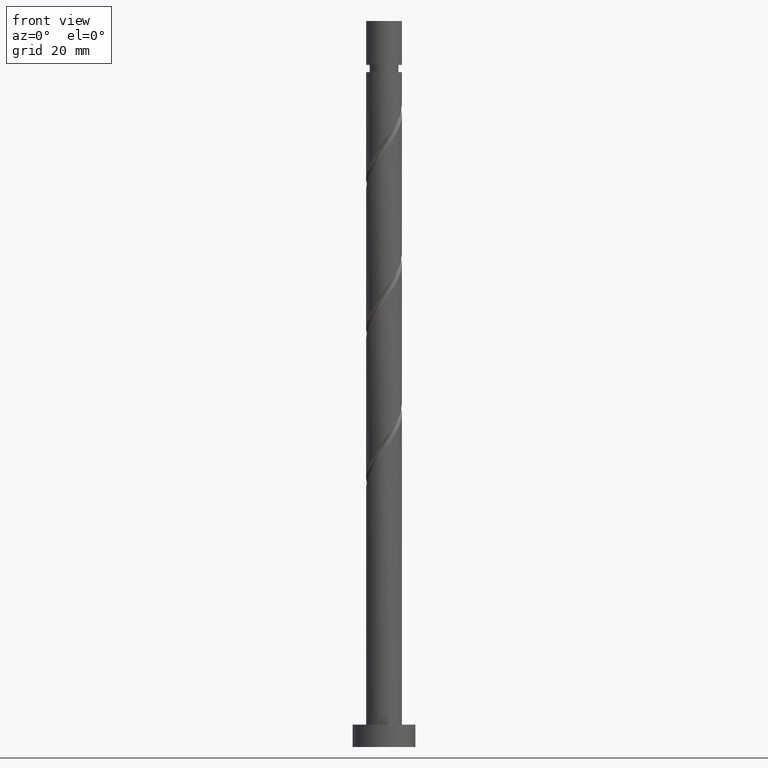
[diagram: clean part render]
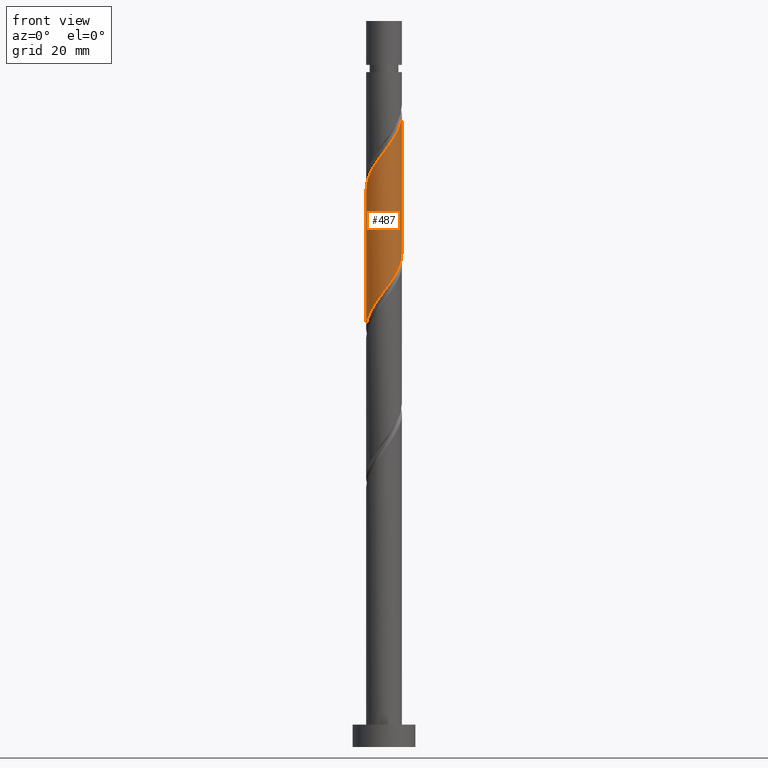
[diagram: same view with one face highlighted and labeled with its STEP entity id]
A machine part, front view. The second image highlights one B-rep face of the part: STEP entity #487.
In plain terms, the highlighted cylindrical surface (edge-blend (fillet) strip) has radius 4 mm, axis along (-0, -0, -1).
Its self-contained STEP definition (entity closure, byte-faithful):
#62 = CARTESIAN_POINT ( 'NONE',  ( -4.000000000000000888, 4.142198290882799695E-15, 93.32947835202993758 ) ) ;
#74 = CARTESIAN_POINT ( 'NONE',  ( 2.648031390325375600, -3.043886962058125700, 105.4603561412643131 ) ) ;
#76 = CARTESIAN_POINT ( 'NONE',  ( -1.312067740227890189, -3.815205935069465149, 99.90480058570875599 ) ) ;
#117 = EDGE_CURVE ( 'NONE', #1320, #896, #175, .T. ) ;
#140 = CARTESIAN_POINT ( 'NONE',  ( 4.000000000000000000, 5.981513777448084425E-15, 109.9961450186966232 ) ) ;
#146 = CARTESIAN_POINT ( 'NONE',  ( -3.920000000000005702, -0.7959899496852967937, 125.5992450301532131 ) ) ;
#175 = LINE ( 'NONE', #606, #803 ) ;
#191 = CARTESIAN_POINT ( 'NONE',  ( 3.580411880364394062, -1.783437906669448125, 107.5436894745976417 ) ) ;
#193 = CARTESIAN_POINT ( 'NONE',  ( -4.000000000000000888, -0.1229678066306910678, 93.49264204005811507 ) ) ;
#204 = CARTESIAN_POINT ( 'NONE',  ( 1.769985991819531312, -3.625529984802032590, 104.0714672523754132 ) ) ;
#247 = CARTESIAN_POINT ( 'NONE',  ( -1.270652482415439710, -3.792814557677651521, 131.1548005857087844 ) ) ;
#326 = CARTESIAN_POINT ( 'NONE',  ( 3.919999999999999929, -0.7959899496852973488, 108.9325783634865417 ) ) ;
#349 = CARTESIAN_POINT ( 'NONE',  ( -4.000000000000000888, 4.142198290882799695E-15, 93.32947835202993758 ) ) ;
#371 = CARTESIAN_POINT ( 'NONE',  ( 4.000000000000006217, -0.1229678066306914425, 141.0391813535816823 ) ) ;
#409 = CARTESIAN_POINT ( 'NONE',  ( 2.254808073111003619, -3.345617825659332745, 136.0159116968198987 ) ) ;
#419 = CARTESIAN_POINT ( 'NONE',  ( 1.783437906669445905, -3.580411880364401611, 135.3214672523754132 ) ) ;
#433 = EDGE_CURVE ( 'NONE', #896, #450, #772, .T. ) ;
#450 = VERTEX_POINT ( 'NONE', #349 ) ;
#457 = VECTOR ( 'NONE', #988, 1000.000000000000000 ) ;
#460 = ORIENTED_EDGE ( 'NONE', *, *, #1239, .F. ) ;
#476 = CARTESIAN_POINT ( 'NONE',  ( -0.7959899496852971268, -3.919999999999999929, 100.5992450301531846 ) ) ;
#478 = CARTESIAN_POINT ( 'NONE',  ( -2.649347517584564660, -2.996824607992349510, 97.82146725237542739 ) ) ;
#487 = ADVANCED_FACE ( 'NONE', ( #889 ), #1423, .T. ) ;
#510 = CARTESIAN_POINT ( 'NONE',  ( -4.000000000000006217, -9.121808510608274159E-16, 124.5356783749431457 ) ) ;
#518 = CARTESIAN_POINT ( 'NONE',  ( -2.209008691072457786, -3.334708473430082698, 129.7659116968198703 ) ) ;
#555 = CARTESIAN_POINT ( 'NONE',  ( 2.649347517584565104, -2.996824607992356615, 136.7103561412642989 ) ) ;
#604 = CARTESIAN_POINT ( 'NONE',  ( -3.625529984802032590, -1.769985991819531312, 95.73813391904211301 ) ) ;
#606 = CARTESIAN_POINT ( 'NONE',  ( 4.000000000000000000, 4.898587196589412829E-16, 162.0000000000000000 ) ) ;
#612 = CARTESIAN_POINT ( 'NONE',  ( 0.7713189730113375608, -3.960099130553265123, 102.6825783634865275 ) ) ;
#647 = VERTEX_POINT ( 'NONE', #1067 ) ;
#652 = CARTESIAN_POINT ( 'NONE',  ( -3.580411880364400723, -1.783437906669446793, 126.9881339190420704 ) ) ;
#736 = CARTESIAN_POINT ( 'NONE',  ( 4.000000000000000000, 5.981513777448084425E-15, 109.9961450186966232 ) ) ;
#738 = CARTESIAN_POINT ( 'NONE',  ( -3.792814557677647969, -1.270652482415435047, 95.04368947459767014 ) ) ;
#747 = CARTESIAN_POINT ( 'NONE',  ( 1.270652482415434825, -3.792814557677647969, 103.3770228079309703 ) ) ;
#750 = CARTESIAN_POINT ( 'NONE',  ( -3.043886962058125700, -2.648031390325376044, 97.12702280793099874 ) ) ;
#772 =( BOUNDED_CURVE ( )  B_SPLINE_CURVE ( 2, ( #736, #1674, #326, #1007, #191, #1272, #1540, #74, #877, #204, #747, #612, #1150, #1685, #476, #76, #1152, #1687, #478, #750, #1019, #604, #738, #1676, #1551, #193, #62 ),
 .UNSPECIFIED., .F., .F. ) 
 B_SPLINE_CURVE_WITH_KNOTS ( ( 3, 2, 2, 2, 2, 2, 2, 2, 2, 2, 2, 2, 2, 3 ),
 ( 0.5545317669814462391, 0.5625000000000000000, 0.5729166666666666297, 0.5833333333333333703, 0.5937500000000000000, 0.6041666666666666297, 0.6145833333333333703, 0.6250000000000000000, 0.6354166666666666297, 0.6458333333333333703, 0.6562500000000000000, 0.6666666666666666297, 0.6770833333333333703, 0.6795317669814463502 ),
 .UNSPECIFIED. ) 
 CURVE ( )  GEOMETRIC_REPRESENTATION_ITEM ( )  RATIONAL_B_SPLINE_CURVE ( ( 0.9062941362546368396, 0.9031415850403409218, 0.9090909090909164991, 0.9013135103398348669, 0.9090909090909164991, 0.9013135103398348669, 0.9090909090909164991, 0.9013135103398348669, 0.9090909090909164991, 0.9013135103398348669, 0.9090909090909164991, 0.9013135103398348669, 0.9090909090909164991, 0.9013135103398348669, 0.9090909090909164991, 0.9013135103398348669, 0.9090909090909164991, 0.9013135103398348669, 0.9090909090909164991, 0.9013135103398348669, 0.9090909090909164991, 0.9013135103398348669, 0.9090909090909164991, 0.9013135103398348669, 0.9090909090909164991, 0.9072628343904102222, 0.9062941362546367285 ) ) 
 REPRESENTATION_ITEM ( '' )  );
#778 = AXIS2_PLACEMENT_3D ( 'NONE', #1401, #1141, #1274 ) ;
#782 = CARTESIAN_POINT ( 'NONE',  ( 3.625529984802036143, -1.769985991819537530, 138.7936894745976701 ) ) ;
#791 = CARTESIAN_POINT ( 'NONE',  ( -0.2457034069343194127, -3.992446597741905467, 132.5436894745976701 ) ) ;
#803 = VECTOR ( 'NONE', #1154, 1000.000000000000000 ) ;
#822 = CARTESIAN_POINT ( 'NONE',  ( -4.000000000000005329, -0.4020151261036851720, 125.0691047441324315 ) ) ;
#841 = LINE ( 'NONE', #1657, #457 ) ;
#877 = CARTESIAN_POINT ( 'NONE',  ( 2.209008691072451569, -3.334708473430080033, 104.7659116968198418 ) ) ;
#884 = ORIENTED_EDGE ( 'NONE', *, *, #433, .F. ) ;
#889 = FACE_OUTER_BOUND ( 'NONE', #1417, .T. ) ;
#896 = VERTEX_POINT ( 'NONE', #140 ) ;
#915 = CARTESIAN_POINT ( 'NONE',  ( 4.000000000000006217, -1.600054935467353086E-15, 141.2023450416098171 ) ) ;
#949 = CARTESIAN_POINT ( 'NONE',  ( -2.648031390325382262, -3.043886962058128809, 129.0714672523754416 ) ) ;
#954 = CARTESIAN_POINT ( 'NONE',  ( 3.334708473430081366, -2.209008691072459118, 138.0992450301531562 ) ) ;
#987 =( BOUNDED_CURVE ( )  B_SPLINE_CURVE ( 2, ( #510, #822, #146, #1357, #652, #1049, #1085, #949, #518, #1042, #247, #1078, #791, #1615, #1350, #1446, #419, #409, #555, #1193, #954, #782, #1488, #1483, #1574, #371, #1220 ),
 .UNSPECIFIED., .F., .F. ) 
 B_SPLINE_CURVE_WITH_KNOTS ( ( 3, 2, 2, 2, 2, 2, 2, 2, 2, 2, 2, 2, 2, 3 ),
 ( 0.5545317669814462391, 0.5625000000000000000, 0.5729166666666667407, 0.5833333333333332593, 0.5937500000000000000, 0.6041666666666667407, 0.6145833333333332593, 0.6250000000000000000, 0.6354166666666667407, 0.6458333333333332593, 0.6562500000000000000, 0.6666666666666667407, 0.6770833333333332593, 0.6795317669814463502 ),
 .UNSPECIFIED. ) 
 CURVE ( )  GEOMETRIC_REPRESENTATION_ITEM ( )  RATIONAL_B_SPLINE_CURVE ( ( 0.9062941362546421686, 0.9031415850403464729, 0.9090909090909219392, 0.9013135103398401959, 0.9090909090909219392, 0.9013135103398401959, 0.9090909090909219392, 0.9013135103398401959, 0.9090909090909219392, 0.9013135103398401959, 0.9090909090909219392, 0.9013135103398401959, 0.9090909090909219392, 0.9013135103398401959, 0.9090909090909219392, 0.9013135103398401959, 0.9090909090909219392, 0.9013135103398401959, 0.9090909090909219392, 0.9013135103398401959, 0.9090909090909219392, 0.9013135103398401959, 0.9090909090909219392, 0.9013135103398401959, 0.9090909090909219392, 0.9072628343904155512, 0.9062941362546421686 ) ) 
 REPRESENTATION_ITEM ( '' )  );
#988 = DIRECTION ( 'NONE',  ( -0.000000000000000000, -0.000000000000000000, -1.000000000000000000 ) ) ;
#1007 = CARTESIAN_POINT ( 'NONE',  ( 3.815205935069464260, -1.312067740227891965, 108.2381339190420988 ) ) ;
#1019 = CARTESIAN_POINT ( 'NONE',  ( -3.334708473430079145, -2.209008691072452901, 96.43257836348652745 ) ) ;
#1042 = CARTESIAN_POINT ( 'NONE',  ( -1.769985991819536642, -3.625529984802036587, 130.4603561412643558 ) ) ;
#1049 = CARTESIAN_POINT ( 'NONE',  ( -3.345617825659332301, -2.254808073111004951, 127.6825783634865417 ) ) ;
#1067 = CARTESIAN_POINT ( 'NONE',  ( -4.000000000000006217, -9.121808510608274159E-16, 124.5356783749431457 ) ) ;
#1078 = CARTESIAN_POINT ( 'NONE',  ( -0.7713189730113420017, -3.960099130553270896, 131.8492450301532415 ) ) ;
#1085 = CARTESIAN_POINT ( 'NONE',  ( -2.996824607992356615, -2.649347517584565992, 128.3770228079309845 ) ) ;
#1141 = DIRECTION ( 'NONE',  ( -0.000000000000000000, -0.000000000000000000, -1.000000000000000000 ) ) ;
#1150 = CARTESIAN_POINT ( 'NONE',  ( 0.2457034069343156657, -3.992446597741899694, 101.9881339190420988 ) ) ;
#1152 = CARTESIAN_POINT ( 'NONE',  ( -1.783437906669446571, -3.580411880364394506, 99.21035614126429891 ) ) ;
#1154 = DIRECTION ( 'NONE',  ( -0.000000000000000000, -0.000000000000000000, -1.000000000000000000 ) ) ;
#1164 = ORIENTED_EDGE ( 'NONE', *, *, #1494, .T. ) ;
#1193 = CARTESIAN_POINT ( 'NONE',  ( 3.043886962058128809, -2.648031390325382262, 137.4048005857087560 ) ) ;
#1220 = CARTESIAN_POINT ( 'NONE',  ( 4.000000000000006217, -1.600054935467353086E-15, 141.2023450416097887 ) ) ;
#1239 = EDGE_CURVE ( 'NONE', #647, #1320, #987, .T. ) ;
#1272 = CARTESIAN_POINT ( 'NONE',  ( 3.345617825659325195, -2.254808073111004951, 106.8492450301531989 ) ) ;
#1274 = DIRECTION ( 'NONE',  ( -1.000000000000000000, 0.000000000000000000, 0.000000000000000000 ) ) ;
#1314 = ORIENTED_EDGE ( 'NONE', *, *, #117, .F. ) ;
#1320 = VERTEX_POINT ( 'NONE', #915 ) ;
#1350 = CARTESIAN_POINT ( 'NONE',  ( 0.7959899496852965717, -3.920000000000005702, 133.9325783634865843 ) ) ;
#1357 = CARTESIAN_POINT ( 'NONE',  ( -3.815205935069471810, -1.312067740227889301, 126.2936894745977128 ) ) ;
#1401 = CARTESIAN_POINT ( 'NONE',  ( 0.000000000000000000, 0.000000000000000000, 162.0000000000000000 ) ) ;
#1417 = EDGE_LOOP ( 'NONE', ( #1314, #460, #1164, #884 ) ) ;
#1423 = CYLINDRICAL_SURFACE ( 'NONE', #778, 4.000000000000000000 ) ;
#1446 = CARTESIAN_POINT ( 'NONE',  ( 1.312067740227889301, -3.815205935069471810, 134.6270228079310129 ) ) ;
#1483 = CARTESIAN_POINT ( 'NONE',  ( 3.960099130553270896, -0.7713189730113436671, 140.1825783634865559 ) ) ;
#1488 = CARTESIAN_POINT ( 'NONE',  ( 3.792814557677651521, -1.270652482415440154, 139.4881339190420988 ) ) ;
#1494 = EDGE_CURVE ( 'NONE', #647, #450, #841, .T. ) ;
#1540 = CARTESIAN_POINT ( 'NONE',  ( 2.996824607992349510, -2.649347517584565104, 106.1548005857087276 ) ) ;
#1551 = CARTESIAN_POINT ( 'NONE',  ( -3.992446597741899694, -0.2457034069343168592, 93.65480058570877020 ) ) ;
#1574 = CARTESIAN_POINT ( 'NONE',  ( 3.992446597741905467, -0.2457034069343214111, 140.8770228079309845 ) ) ;
#1615 = CARTESIAN_POINT ( 'NONE',  ( 0.2799121591427031763, -4.024794064930540927, 133.2381339190421272 ) ) ;
#1657 = CARTESIAN_POINT ( 'NONE',  ( -4.000000000000000000, 0.000000000000000000, 162.0000000000000000 ) ) ;
#1674 = CARTESIAN_POINT ( 'NONE',  ( 4.000000000000001776, -0.4020151261036827850, 109.4627186495073516 ) ) ;
#1676 = CARTESIAN_POINT ( 'NONE',  ( -3.960099130553265123, -0.7713189730113386711, 94.34924503015321307 ) ) ;
#1685 = CARTESIAN_POINT ( 'NONE',  ( -0.2799121591427060629, -4.024794064930536486, 101.2936894745976275 ) ) ;
#1687 = CARTESIAN_POINT ( 'NONE',  ( -2.254808073111004063, -3.345617825659326527, 98.51591169681988447 ) ) ;